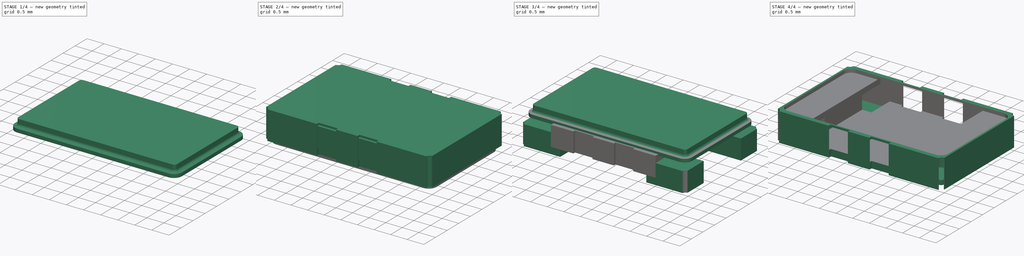
[diagram: build sequence overview — one tinted view per stage of 4, left to right]
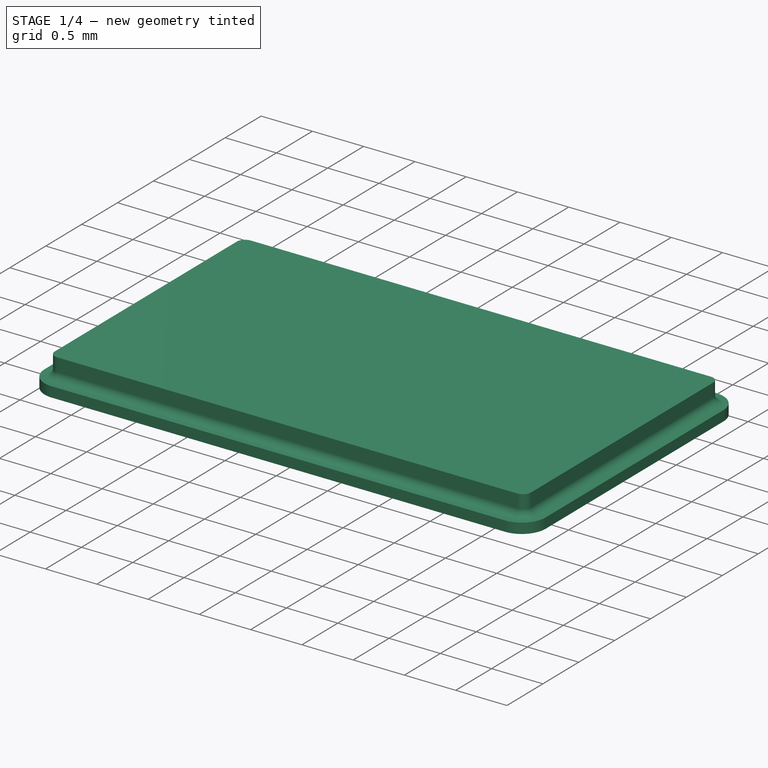
[diagram: stage 1 of 4 — iso view after this stage's code; geometry added in this stage tinted green]
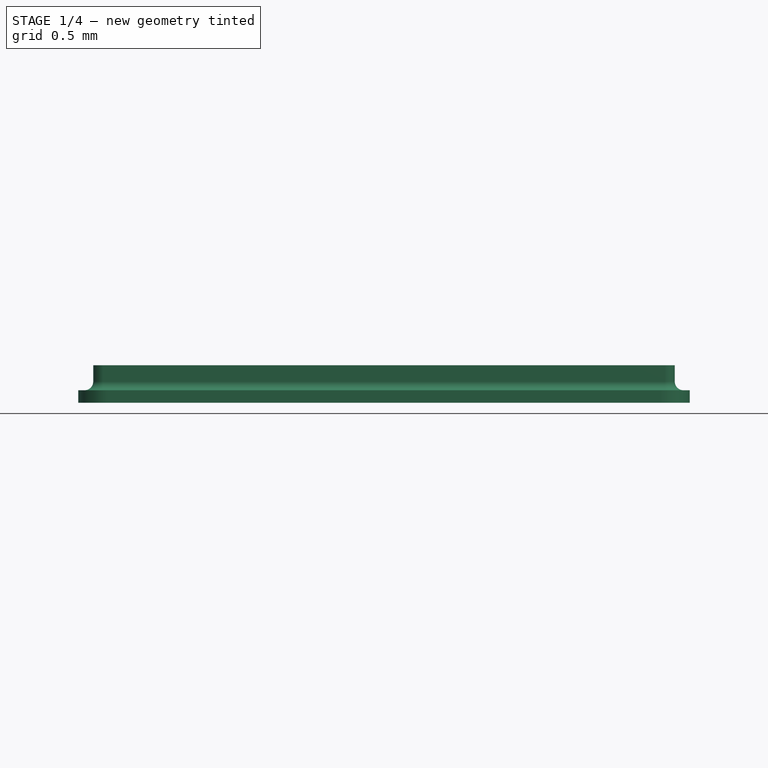
[diagram: stage 1 of 4 — front view after this stage's code; geometry added in this stage tinted green]
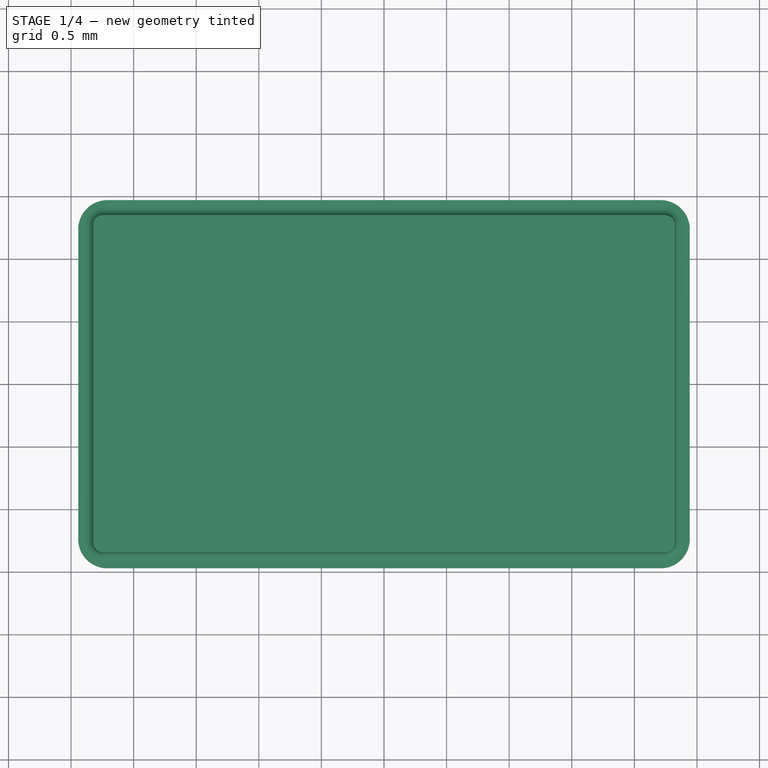
[diagram: stage 1 of 4 — top view after this stage's code; geometry added in this stage tinted green]
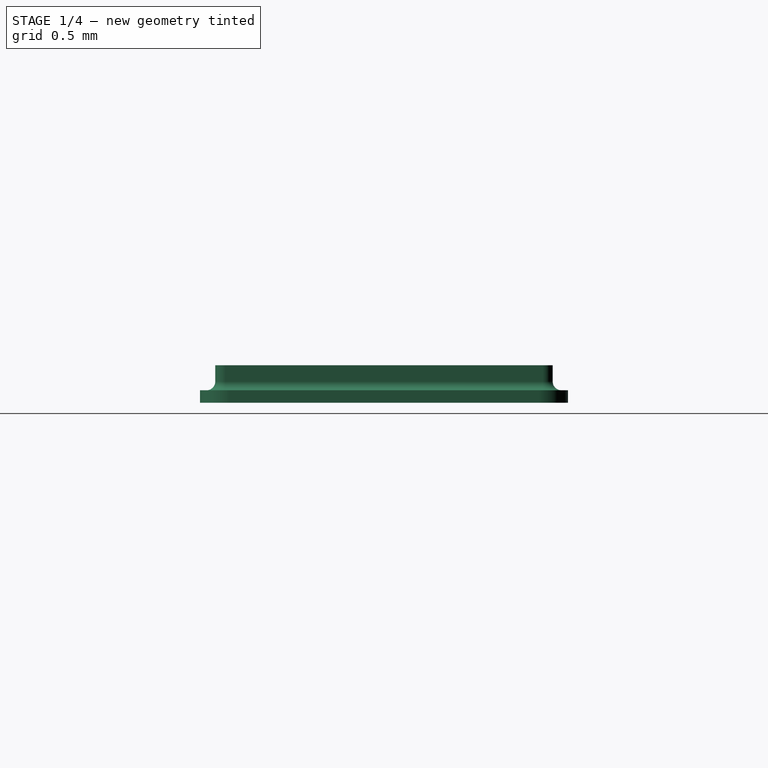
[diagram: stage 1 of 4 — right view after this stage's code; geometry added in this stage tinted green]
FCSTD DOCUMENT  (FreeCAD 0.18R)
Label: Oscillator_SMD_Fox_FT5H_5.0x3.2mm
License: All rights reserved
LicenseURL: http://en.wikipedia.org/wiki/All_rights_reserved
objects: Sketcher::SketchObject×6, PartDesign::Pad×6, PartDesign::Body×6, PartDesign::FeatureBase×2, PartDesign::Fillet×2, PartDesign::Plane×1, Part::MultiCommon×1, Part::MultiFuse×1, Part::Cut×1, App::Part×1, Part::Feature×1
note: 33 computed .brp shape members not serialized (recipe doc carries the construction recipe); baked Part::Feature solids carry a one-line shape summary decoded from their .brp

FEATURE [PartDesign::Pad] Pad006
  Length = 0.1
  Length2 = 100
  Profile = -> Sketch006
  Reversed = true
  Type = 0
FEATURE [PartDesign::Pad] Pad007
  BaseFeature = -> Pad006
  Length = 0.2
  Length2 = 100
  Profile = -> Sketch007
  Type = 0
FEATURE [PartDesign::Fillet] Fillet
  Base = -> Pad007 [Edge23,Edge16,Edge22,Edge21,Edge20,Edge19,Edge18,Edge17]
  BaseFeature = -> Pad007
  Radius = 0.07
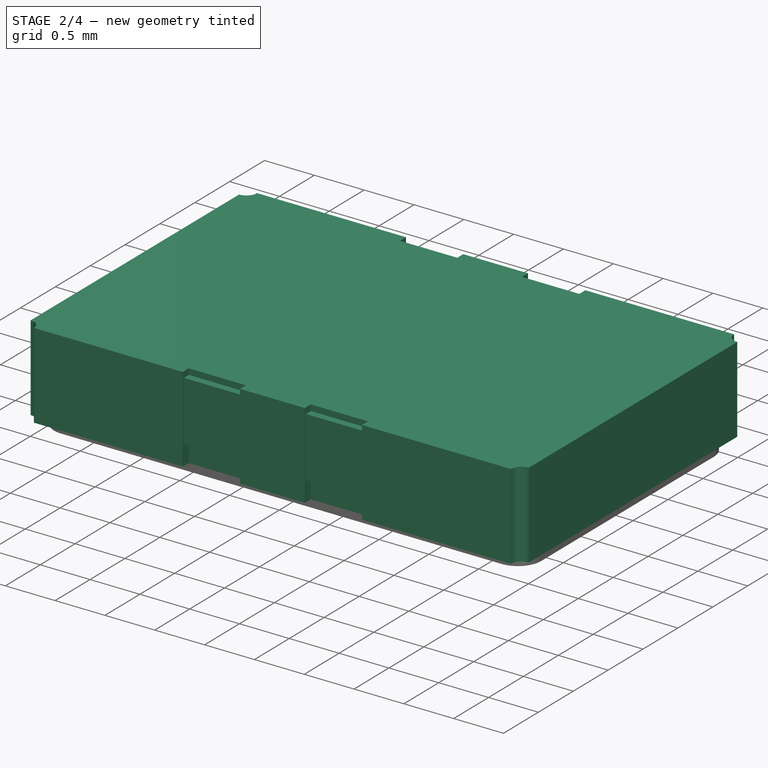
[diagram: stage 2 of 4 — iso view after this stage's code; geometry added in this stage tinted green]
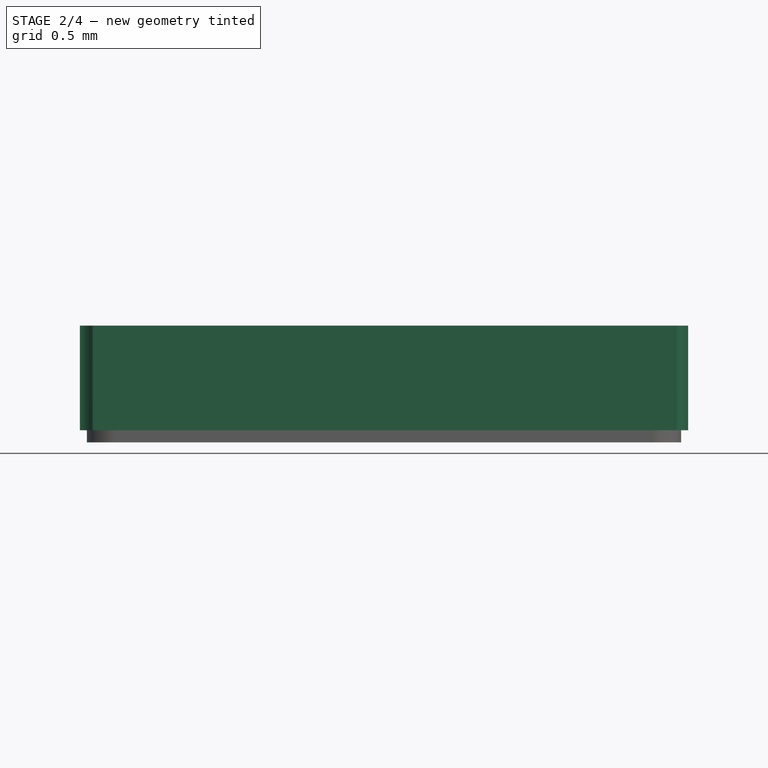
[diagram: stage 2 of 4 — front view after this stage's code; geometry added in this stage tinted green]
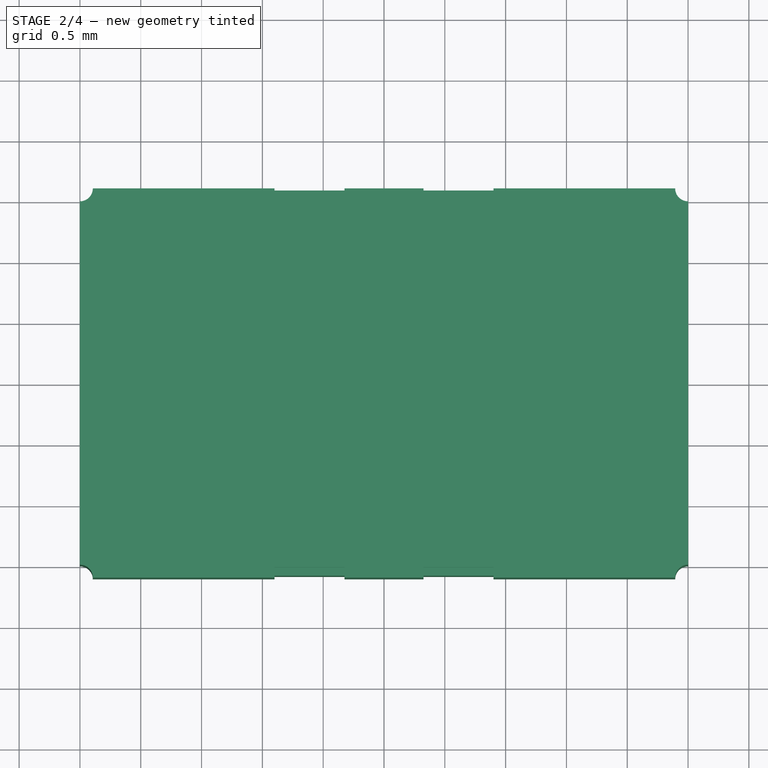
[diagram: stage 2 of 4 — top view after this stage's code; geometry added in this stage tinted green]
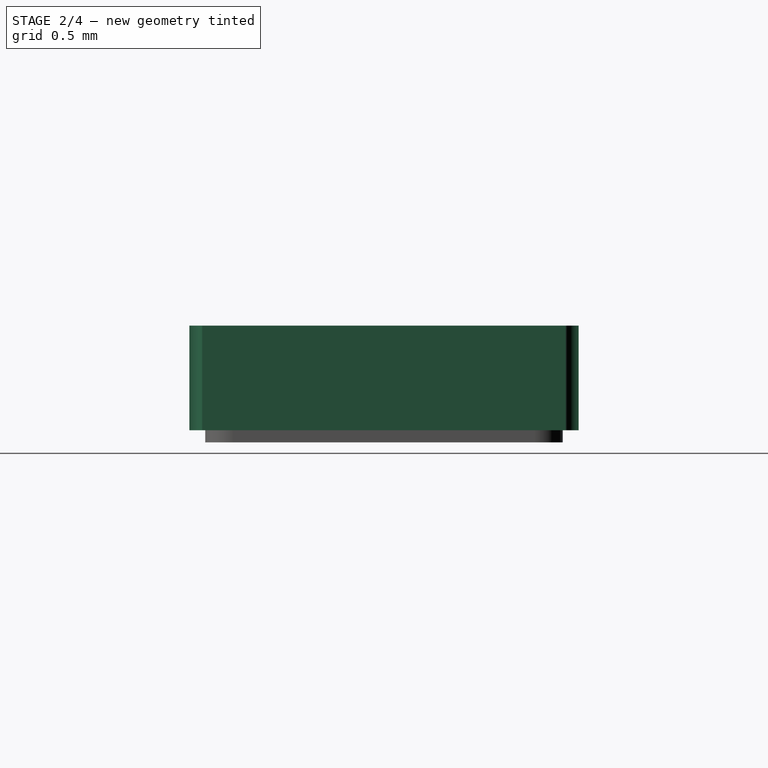
[diagram: stage 2 of 4 — right view after this stage's code; geometry added in this stage tinted green]
FEATURE [Sketcher::SketchObject] Sketch004  label="Pad Footprint"
  MapMode = 5
  Support = -> [XY_Plane006]
  sketch-geometry (17):
    g0: LineSegment StartX=-2.48245 StartY=-1.58381 StartZ=0 EndX=-1.3 EndY=-1.58381 EndZ=0
    g1: LineSegment StartX=-1.3 StartY=-1.58381 StartZ=0 EndX=-1.3 EndY=-1.01213 EndZ=0
    g2: LineSegment StartX=-1.51213 StartY=-0.8 StartZ=0 EndX=-2.48245 EndY=-0.8 EndZ=0
    g3: LineSegment StartX=-2.48245 StartY=-0.8 StartZ=0 EndX=-2.48245 EndY=-1.58381 EndZ=0
    g4: LineSegment StartX=-2.48245 StartY=1.58381 StartZ=0 EndX=-1.3 EndY=1.58381 EndZ=0
    g5: LineSegment StartX=-1.3 StartY=1.58381 StartZ=0 EndX=-1.3 EndY=0.8 EndZ=0
    g6: LineSegment StartX=-1.3 StartY=0.8 StartZ=0 EndX=-2.48245 EndY=0.8 EndZ=0
    g7: LineSegment StartX=-2.48245 StartY=0.8 StartZ=0 EndX=-2.48245 EndY=1.58381 EndZ=0
    g8: LineSegment StartX=2.48245 StartY=1.58381 StartZ=0 EndX=1.3 EndY=1.58381 EndZ=0
    g9: LineSegment StartX=1.3 StartY=1.58381 StartZ=0 EndX=1.3 EndY=0.8 EndZ=0
    g10: LineSegment StartX=1.3 StartY=0.8 StartZ=0 EndX=2.48245 EndY=0.8 EndZ=0
    g11: LineSegment StartX=2.48245 StartY=0.8 StartZ=0 EndX=2.48245 EndY=1.58381 EndZ=0
    g12: LineSegment StartX=1.3 StartY=-0.8 StartZ=0 EndX=2.48245 EndY=-0.8 EndZ=0
    g13: LineSegment StartX=2.48245 StartY=-0.8 StartZ=0 EndX=2.48245 EndY=-1.58381 EndZ=0
    g14: LineSegment StartX=2.48245 StartY=-1.58381 StartZ=0 EndX=1.3 EndY=-1.58381 EndZ=0
    g15: LineSegment StartX=1.3 StartY=-1.58381 StartZ=0 EndX=1.3 EndY=-0.8 EndZ=0
    g16: LineSegment StartX=-1.51213 StartY=-0.8 StartZ=0 EndX=-1.3 EndY=-1.01213 EndZ=0
  constraints (44):
    c: Coincident(g0,g1)
    c: Coincident(g2,g3)
    c: Coincident(g3,g0)
    c: Horizontal(g0)
    c: Horizontal(g2)
    c: Vertical(g1)
    c: Vertical(g3)
    c: Coincident(g4,g5)
    c: Coincident(g5,g6)
    c: Coincident(g6,g7)
    c: Coincident(g7,g4)
    c: Horizontal(g4)
    c: Horizontal(g6)
    c: Vertical(g7)
    c: Coincident(g8,g9)
    c: Coincident(g9,g10)
    c: Coincident(g10,g11)
    c: Coincident(g11,g8)
    c: Horizontal(g8)
    c: Vertical(g9)
    c: Vertical(g11)
    c: Coincident(g12,g13)
    c: Coincident(g13,g14)
    c: Coincident(g14,g15)
    c: Coincident(g15,g12)
    c: Horizontal(g14)
    c: Vertical(g13)
    c: Coincident(g2,g16)
    c: Coincident(g16,g1)
    c: Angle(g2,g16) = 2.35619
    c: Equal(g3,g7)
    c: Equal(g7,g11)
    c: Equal(g11,g13)
    c: Equal(g14,g8)
    c: Equal(g8,g4)
    c: Equal(g4,g0)
    c: Tangent(g6,g10)
    c: Tangent(g1,g5)
    c: Tangent(g2,g12)
    c: DistanceY(g12,g10) = 1.6
    c: DistanceX(g4,g8) = 2.6
    c: Tangent(g9,g15)
    c: Distance(g2,g1) = 0.3
    c: Symmetric(g0,g8,g-1)
FEATURE [PartDesign::Plane] DatumPlane
  AttachmentOffset = pos=(0,0,0.2) rot=(0,0,1;0rad)
  Length = 24
  MapMode = 5
  Placement = pos=(0,0,0.2) rot=(0,0,1;0rad)
  ResizeMode = 0
  Support = -> [XY_Plane006]
  Width = 24
FEATURE [Sketcher::SketchObject] Sketch005
  MapMode = 5
  Placement = pos=(0,0,0.2) rot=(0,0,1;0rad)
  Support = -> [DatumPlane]
  sketch-geometry (4):
    g0: LineSegment StartX=-1.57854 StartY=-1.58394 StartZ=0 EndX=1.57854 EndY=-1.58394 EndZ=0
    g1: LineSegment StartX=1.57854 StartY=-1.58394 StartZ=0 EndX=1.57854 EndY=1.58394 EndZ=0
    g2: LineSegment StartX=1.57854 StartY=1.58394 StartZ=0 EndX=-1.57854 EndY=1.58394 EndZ=0
    g3: LineSegment StartX=-1.57854 StartY=1.58394 StartZ=0 EndX=-1.57854 EndY=-1.58394 EndZ=0
  constraints (9):
    c: Coincident(g0,g1)
    c: Coincident(g1,g2)
    c: Coincident(g2,g3)
    c: Coincident(g3,g0)
    c: Horizontal(g0)
    c: Horizontal(g2)
    c: Vertical(g1)
    c: Vertical(g3)
    c: Symmetric(g2,g0,g-1)
FEATURE [PartDesign::Pad] Pad004
  Length = 0.6
  Length2 = 100
  Placement = pos=(0,0,0.2) rot=(0,0,1;0rad)
  Profile = -> Sketch005
  Type = 0
FEATURE [PartDesign::Body] Body004  label="Pads"
  Group = -> [Sketch004,Sketch005,Pad004,DatumPlane,Pad005]
  Origin = -> Origin006
  Tip = -> Pad005
FEATURE [Sketcher::SketchObject] Sketch006  label="bottom"
  MapMode = 5
  Support = -> [XY_Plane008]
  sketch-geometry (8):
    g0: LineSegment StartX=-2.21025 StartY=1.46989 StartZ=0 EndX=2.21025 EndY=1.46989 EndZ=0
    g1: LineSegment StartX=2.44299 StartY=1.23716 StartZ=0 EndX=2.44299 EndY=-1.23716 EndZ=0
    g2: LineSegment StartX=2.21025 StartY=-1.46989 StartZ=0 EndX=-2.21025 EndY=-1.46989 EndZ=0
    g3: LineSegment StartX=-2.44299 StartY=-1.23716 StartZ=0 EndX=-2.44299 EndY=1.23716 EndZ=0
    g4: ArcOfCircle CenterX=-2.21025 CenterY=1.23716 CenterZ=0 NormalX=0 NormalY=0 NormalZ=1 AngleXU=0 Radius=0.232737 StartAngle=1.5708 EndAngle=3.14159
    g5: ArcOfCircle CenterX=2.21025 CenterY=1.23716 CenterZ=0 NormalX=0 NormalY=0 NormalZ=1 AngleXU=0 Radius=0.232737 StartAngle=0 EndAngle=1.5708
    g6: ArcOfCircle CenterX=2.21025 CenterY=-1.23716 CenterZ=0 NormalX=0 NormalY=0 NormalZ=1 AngleXU=0 Radius=0.232737 StartAngle=4.71239 EndAngle=6.28319
    g7: ArcOfCircle CenterX=-2.21025 CenterY=-1.23716 CenterZ=0 NormalX=0 NormalY=0 NormalZ=1 AngleXU=0 Radius=0.232737 StartAngle=3.14159 EndAngle=4.71239
  constraints (16):
    c: Horizontal(g0)
    c: Horizontal(g2)
    c: Vertical(g1)
    c: Vertical(g3)
    c: Tangent(g0,g4) = 1.5708
    c: Tangent(g3,g4) = 1.5708
    c: Tangent(g0,g5) = 1.5708
    c: Tangent(g1,g5) = 1.5708
    c: Tangent(g1,g6) = 1.5708
    c: Tangent(g2,g6) = 1.5708
    c: Tangent(g2,g7) = 1.5708
    c: Tangent(g3,g7) = 1.5708
    c: Equal(g7,g4)
    c: Equal(g4,g5)
    c: Equal(g5,g6)
    c: Symmetric(g4,g6,g-1)
FEATURE [Sketcher::SketchObject] Sketch007  label="top"
  MapMode = 5
  Support = -> [XY_Plane008]
  sketch-geometry (8):
    g0: LineSegment StartX=-2.24249 StartY=1.3481 StartZ=0 EndX=2.24249 EndY=1.3481 EndZ=0
    g1: LineSegment StartX=2.32297 StartY=1.26762 StartZ=0 EndX=2.32297 EndY=-1.26762 EndZ=0
    g2: LineSegment StartX=2.24249 StartY=-1.3481 StartZ=0 EndX=-2.24249 EndY=-1.3481 EndZ=0
    g3: LineSegment StartX=-2.32297 StartY=-1.26762 StartZ=0 EndX=-2.32297 EndY=1.26762 EndZ=0
    g4: ArcOfCircle CenterX=-2.24249 CenterY=1.26762 CenterZ=0 NormalX=0 NormalY=0 NormalZ=1 AngleXU=0 Radius=0.080476 StartAngle=1.5708 EndAngle=3.14159
    g5: ArcOfCircle CenterX=2.24249 CenterY=1.26762 CenterZ=0 NormalX=0 NormalY=0 NormalZ=1 AngleXU=0 Radius=0.080476 StartAngle=-9e-16 EndAngle=1.5708
    g6: ArcOfCircle CenterX=2.24249 CenterY=-1.26762 CenterZ=0 NormalX=0 NormalY=0 NormalZ=1 AngleXU=0 Radius=0.080476 StartAngle=4.71239 EndAngle=6.28319
    g7: ArcOfCircle CenterX=-2.24249 CenterY=-1.26762 CenterZ=0 NormalX=0 NormalY=0 NormalZ=1 AngleXU=0 Radius=0.080476 StartAngle=3.14159 EndAngle=4.71239
  constraints (16):
    c: Horizontal(g0)
    c: Horizontal(g2)
    c: Vertical(g1)
    c: Vertical(g3)
    c: Tangent(g0,g4) = 1.5708
    c: Tangent(g3,g4) = 1.5708
    c: Tangent(g0,g5) = 1.5708
    c: Tangent(g1,g5) = 1.5708
    c: Tangent(g1,g6) = 1.5708
    c: Tangent(g2,g6) = 1.5708
    c: Tangent(g2,g7) = 1.5708
    c: Tangent(g3,g7) = 1.5708
    c: Equal(g7,g4)
    c: Equal(g4,g5)
    c: Equal(g5,g6)
    c: Symmetric(g4,g6,g-1)
FEATURE [Sketcher::SketchObject] Sketch
  MapMode = 5
  Support = -> [XY_Plane]
  sketch-geometry (28):
    g0: LineSegment [constr] StartX=-2.5 StartY=1.6 StartZ=0 EndX=2.5 EndY=1.6 EndZ=0
    g1: LineSegment [constr] StartX=2.5 StartY=1.6 StartZ=0 EndX=2.5 EndY=-1.6 EndZ=0
    g2: LineSegment [constr] StartX=2.5 StartY=-1.6 StartZ=0 EndX=-2.5 EndY=-1.6 EndZ=0
    g3: LineSegment [constr] StartX=-2.5 StartY=-1.6 StartZ=0 EndX=-2.5 EndY=1.6 EndZ=0
    g4: ArcOfCircle CenterX=-2.5 CenterY=1.6 CenterZ=0 NormalX=0 NormalY=0 NormalZ=1 AngleXU=0 Radius=0.106066 StartAngle=4.71239 EndAngle=6.28319
    g5: ArcOfCircle CenterX=2.5 CenterY=1.6 CenterZ=0 NormalX=0 NormalY=0 NormalZ=1 AngleXU=0 Radius=0.106066 StartAngle=3.14159 EndAngle=4.71239
    g6: ArcOfCircle CenterX=2.5 CenterY=-1.6 CenterZ=0 NormalX=0 NormalY=0 NormalZ=1 AngleXU=0 Radius=0.106066 StartAngle=1.5708 EndAngle=3.14159
    g7: ArcOfCircle CenterX=-2.5 CenterY=-1.6 CenterZ=0 NormalX=0 NormalY=0 NormalZ=1 AngleXU=0 Radius=0.106066 StartAngle=0 EndAngle=1.5708
    g8: LineSegment StartX=-2.39393 StartY=1.6 StartZ=0 EndX=-0.9 EndY=1.6 EndZ=0
    g9: LineSegment StartX=2.5 StartY=1.49393 StartZ=0 EndX=2.5 EndY=-1.49393 EndZ=0
    g10: LineSegment StartX=-2.39393 StartY=-1.6 StartZ=0 EndX=-0.9 EndY=-1.6 EndZ=0
    g11: LineSegment StartX=-2.5 StartY=-1.49393 StartZ=0 EndX=-2.5 EndY=1.49393 EndZ=0
    g12: LineSegment StartX=-0.325 StartY=1.6 StartZ=0 EndX=-0.325 EndY=1.51409 EndZ=0
    g13: LineSegment StartX=-0.325 StartY=1.51409 StartZ=0 EndX=-0.9 EndY=1.51409 EndZ=0
    g14: LineSegment StartX=-0.9 StartY=1.51409 StartZ=0 EndX=-0.9 EndY=1.6 EndZ=0
    g15: LineSegment StartX=0.9 StartY=1.6 StartZ=0 EndX=0.9 EndY=1.51409 EndZ=0
    g16: LineSegment StartX=0.9 StartY=1.51409 StartZ=0 EndX=0.325 EndY=1.51409 EndZ=0
    g17: LineSegment StartX=0.325 StartY=1.51409 StartZ=0 EndX=0.325 EndY=1.6 EndZ=0
    g18: LineSegment StartX=-0.9 StartY=-1.51409 StartZ=0 EndX=-0.325 EndY=-1.51409 EndZ=0
    g19: LineSegment StartX=-0.325 StartY=-1.51409 StartZ=0 EndX=-0.325 EndY=-1.6 EndZ=0
    g20: LineSegment StartX=-0.9 StartY=-1.6 StartZ=0 EndX=-0.9 EndY=-1.51409 EndZ=0
    g21: LineSegment StartX=0.325 StartY=-1.51409 StartZ=0 EndX=0.9 EndY=-1.51409 EndZ=0
    g22: LineSegment StartX=0.9 StartY=-1.51409 StartZ=0 EndX=0.9 EndY=-1.6 EndZ=0
    g23: LineSegment StartX=0.325 StartY=-1.6 StartZ=0 EndX=0.325 EndY=-1.51409 EndZ=0
    g24: LineSegment StartX=-0.325 StartY=1.6 StartZ=0 EndX=0.325 EndY=1.6 EndZ=0
    g25: LineSegment StartX=0.9 StartY=1.6 StartZ=0 EndX=2.39393 EndY=1.6 EndZ=0
    g26: LineSegment StartX=0.9 StartY=-1.6 StartZ=0 EndX=2.39393 EndY=-1.6 EndZ=0
    g27: LineSegment StartX=-0.325 StartY=-1.6 StartZ=0 EndX=0.325 EndY=-1.6 EndZ=0
  constraints (86):
    c: Coincident(g0,g1)
    c: Coincident(g1,g2)
    c: Coincident(g2,g3)
    c: Coincident(g3,g0)
    c: Horizontal(g0)
    c: Horizontal(g2)
    c: Vertical(g1)
    c: Vertical(g3)
    c: Symmetric(g0,g1,g-1)
    c: Coincident(g4,g0)
    c: Coincident(g5,g0)
    c: Coincident(g6,g1)
    c: Coincident(g7,g2)
    c: PointOnObject(g4,g3)
    c: PointOnObject(g4,g0)
    c: PointOnObject(g5,g0)
    c: PointOnObject(g5,g1)
    c: PointOnObject(g6,g1)
    c: PointOnObject(g6,g2)
    c: PointOnObject(g7,g2)
    c: PointOnObject(g7,g3)
    c: Coincident(g8,g4)
    c: Coincident(g25,g5)
    c: Coincident(g9,g6)
    c: Coincident(g10,g7)
    c: Coincident(g26,g6)
    c: Coincident(g11,g7)
    c: Coincident(g11,g4)
    c: Equal(g4,g7)
    c: Equal(g7,g5)
    c: Equal(g5,g6)
    c: DistanceY(g7,g4) = 3.2
    c: Coincident(g5,g9)
    c: DistanceX(g4,g5) = 5
    c: Coincident(g12,g13)
    c: Coincident(g13,g14)
    c: Horizontal(g13)
    c: Vertical(g12)
    c: Vertical(g14)
    c: Coincident(g15,g16)
    c: Coincident(g16,g17)
    c: Horizontal(g16)
    c: Vertical(g15)
    c: Vertical(g17)
    c: Coincident(g18,g19)
    c: Coincident(g20,g18)
    c: Horizontal(g18)
    c: Vertical(g19)
    c: Vertical(g20)
    c: Coincident(g21,g22)
    c: Coincident(g23,g21)
    c: Horizontal(g21)
    c: Vertical(g22)
    c: Vertical(g23)
    c: PointOnObject(g14,g0)
    c: PointOnObject(g12,g0)
    c: PointOnObject(g17,g0)
    c: PointOnObject(g15,g0)
    c: PointOnObject(g22,g2)
    c: PointOnObject(g23,g2)
    c: PointOnObject(g19,g2)
    c: PointOnObject(g20,g2)
    c: PointOnObject(g8,g14)
    c: PointOnObject(g24,g12)
    c: Tangent(g8,g24)
    c: PointOnObject(g24,g17)
    c: PointOnObject(g25,g15)
    c: Tangent(g24,g25)
    c: PointOnObject(g27,g23)
    c: PointOnObject(g26,g22)
    c: Tangent(g10,g26)
    c: PointOnObject(g10,g20)
    c: PointOnObject(g27,g19)
    c: Tangent(g10,g27)
    c: Equal(g13,g16)
    c: Equal(g16,g18)
    c: Equal(g18,g21)
    c: Equal(g12,g17)
    c: Equal(g17,g19)
    c: Equal(g19,g23)
    c: Equal(g10,g8)
    c: Equal(g8,g25)
    c: Equal(g25,g26)
    c: DistanceX(g4,g8) = 1.6
    c: DistanceX(g12,g17) = 0.65
    c: Distance(g4,g4) = 0.15
FEATURE [PartDesign::Pad] Pad
  Length = 0.86
  Length2 = 100
  Profile = -> Sketch
  Type = 0
FEATURE [PartDesign::Body] Body  label="Epoxy Envelope"
  Group = -> [Sketch,Pad]
  Origin = -> Origin
  Tip = -> Pad
FEATURE [PartDesign::FeatureBase] Clone
  BaseFeature = -> Body
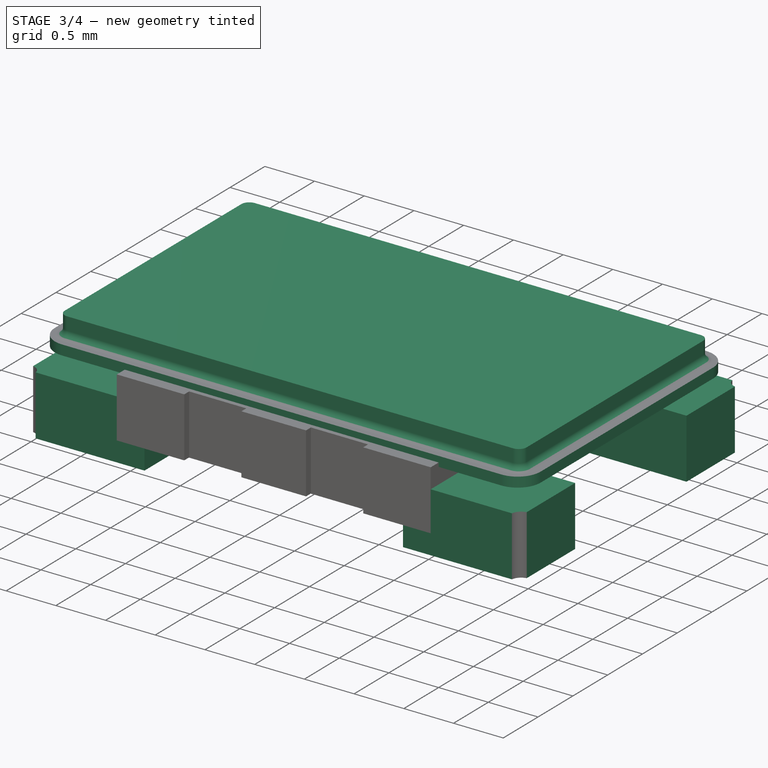
[diagram: stage 3 of 4 — iso view after this stage's code; geometry added in this stage tinted green]
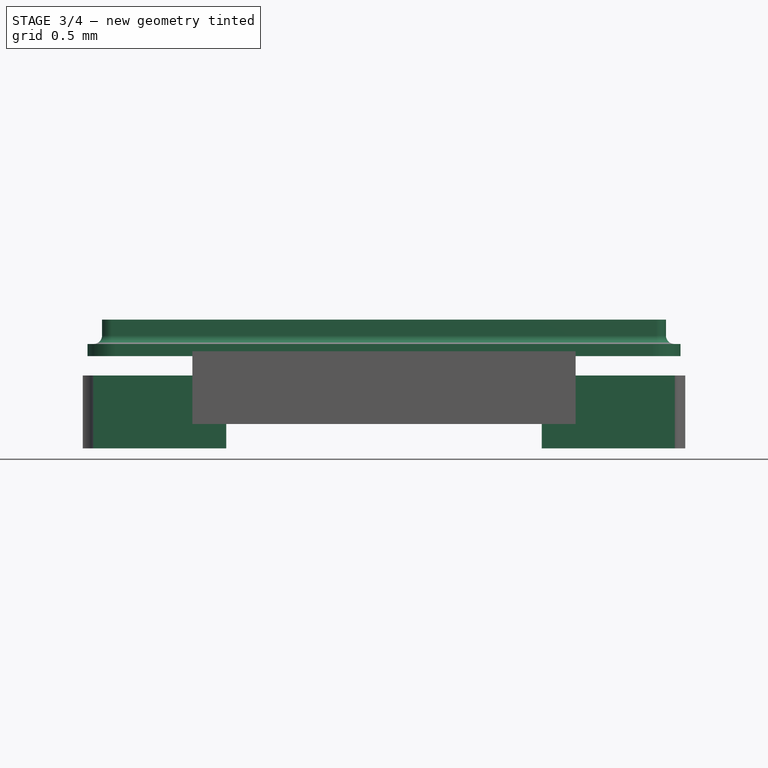
[diagram: stage 3 of 4 — front view after this stage's code; geometry added in this stage tinted green]
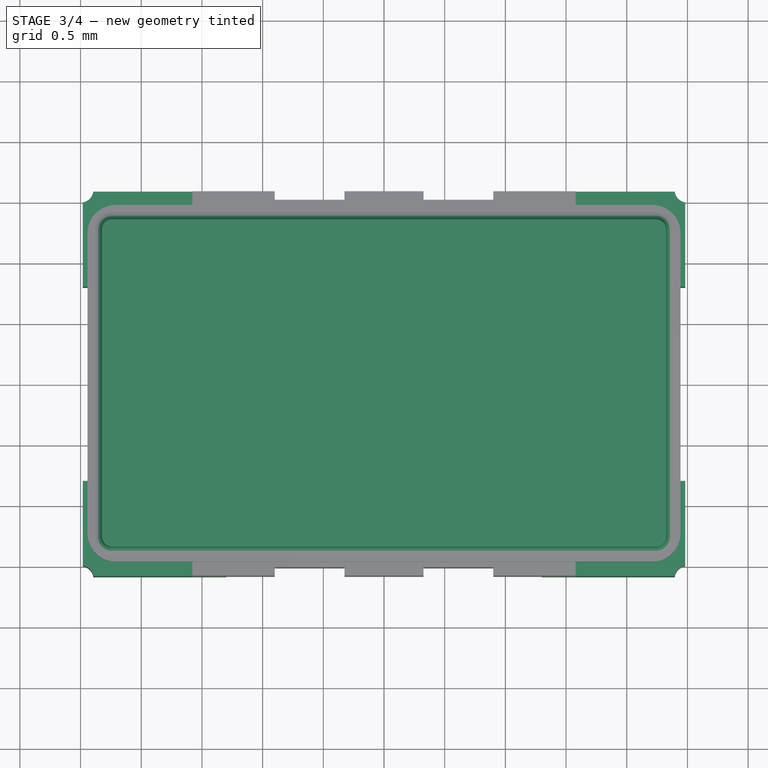
[diagram: stage 3 of 4 — top view after this stage's code; geometry added in this stage tinted green]
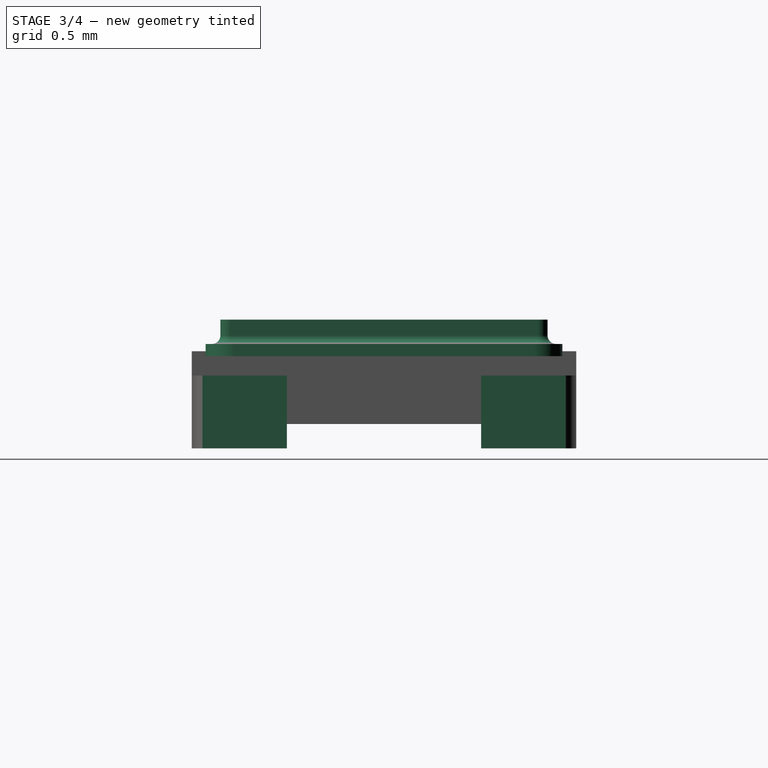
[diagram: stage 3 of 4 — right view after this stage's code; geometry added in this stage tinted green]
FEATURE [PartDesign::Pad] Pad005
  BaseFeature = -> Pad004
  Length = 0.6
  Length2 = 100
  Placement = pos=(0,0,0.2) rot=(0,0,1;0rad)
  Profile = -> Sketch004
  Type = 0
FEATURE [PartDesign::Body] Body005  label="Epoxy Envelope Clone"
  BaseFeature = -> Body
  Group = -> [Clone]
  Origin = -> Origin007
  Tip = -> Clone
FEATURE [Part::MultiCommon] Common  label="Pads (trimmed)"
  Shapes = -> [Body004,Body005]
FEATURE [PartDesign::Body] Body007  label="Cap"
  Group = -> [CopySketch007,Pad008,Fillet001]
  Origin = -> Origin009
  Placement = pos=(0,0,1.06) rot=(0,0,1;0rad)
  Tip = -> Fillet001
FEATURE [Part::MultiFuse] Fusion  label="Gold Bits"
  Shapes = -> [Common,Body006]
FEATURE [PartDesign::FeatureBase] Clone001
  BaseFeature = -> Fusion
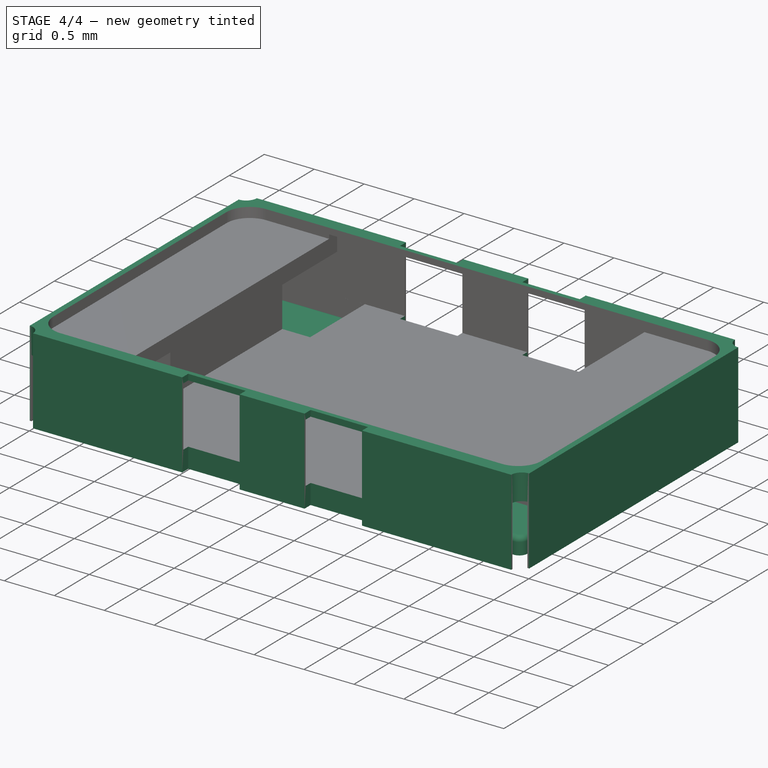
[diagram: stage 4 of 4 — iso view after this stage's code; geometry added in this stage tinted green]
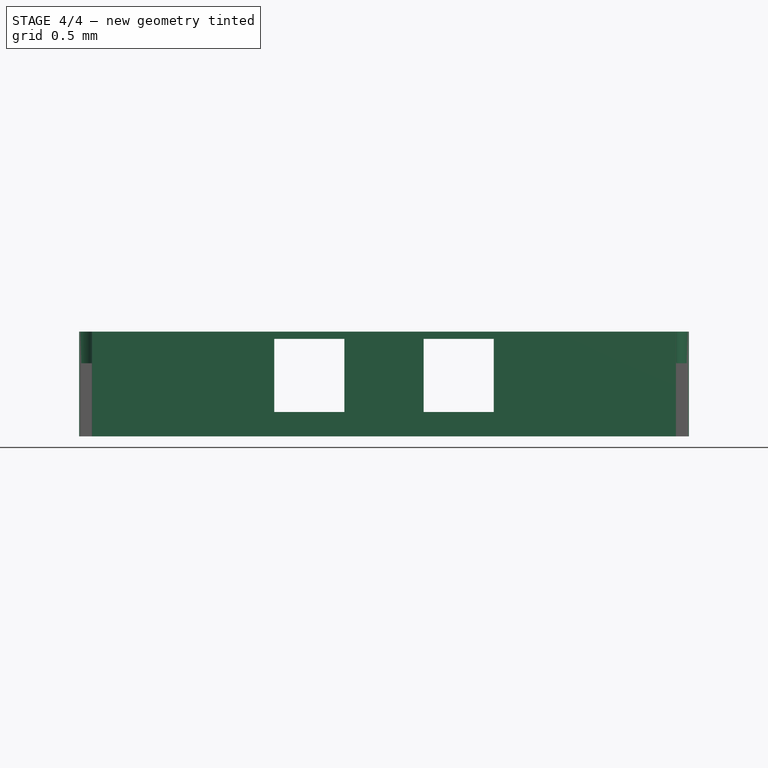
[diagram: stage 4 of 4 — front view after this stage's code; geometry added in this stage tinted green]
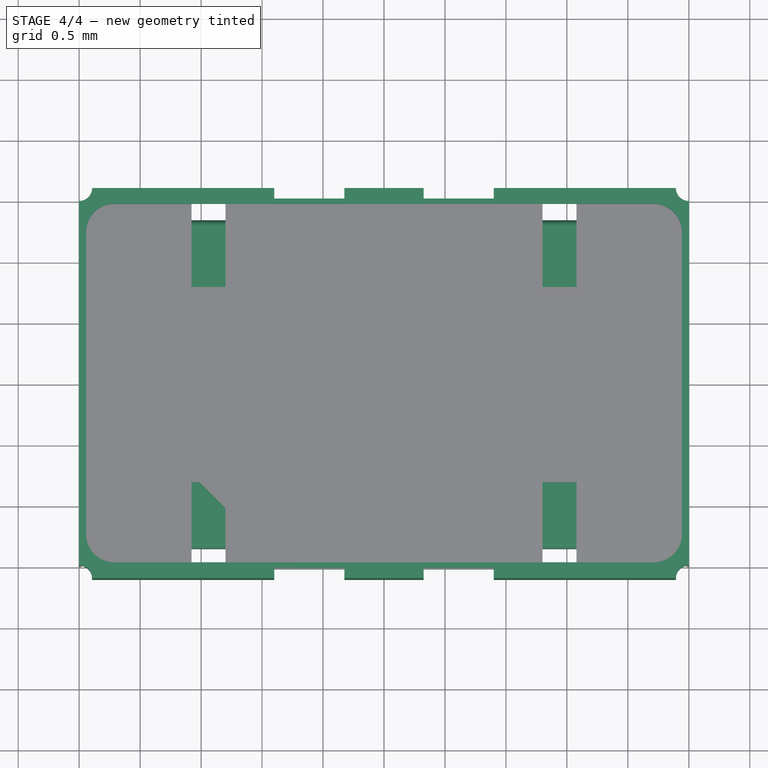
[diagram: stage 4 of 4 — top view after this stage's code; geometry added in this stage tinted green]
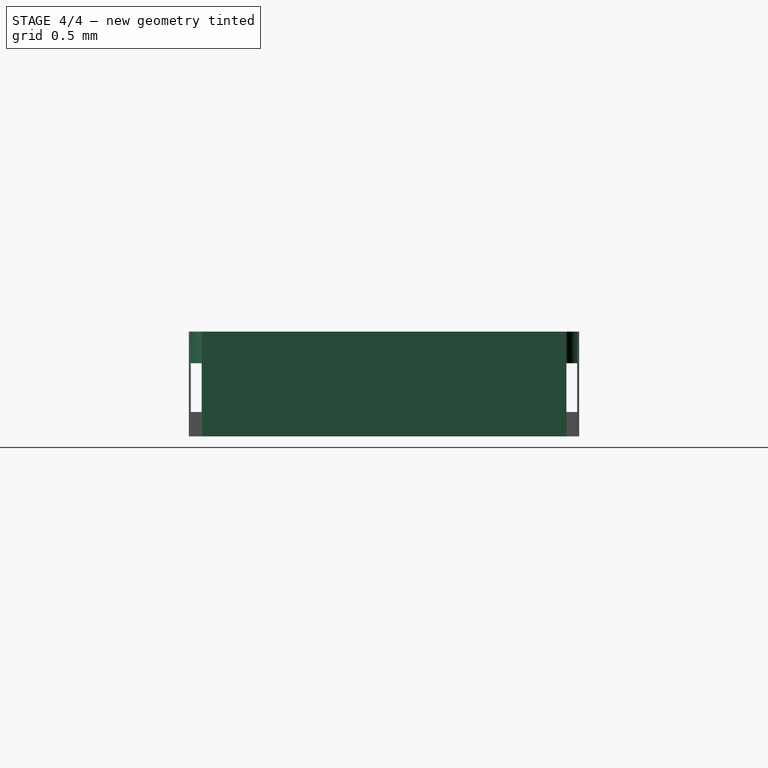
[diagram: stage 4 of 4 — right view after this stage's code; geometry added in this stage tinted green]
FEATURE [PartDesign::Body] Body006  label="Substrate"
  Group = -> [Sketch007,Sketch006,Pad006,Pad007,Fillet]
  Origin = -> Origin008
  Placement = pos=(0,0,0.86) rot=(0,0,1;0rad)
  Tip = -> Fillet
FEATURE [Sketcher::SketchObject] CopySketch007
  sketch-geometry (8):
    g0: LineSegment StartX=-2.24249 StartY=1.3481 StartZ=0 EndX=2.24249 EndY=1.3481 EndZ=0
    g1: LineSegment StartX=2.32297 StartY=1.26762 StartZ=0 EndX=2.32297 EndY=-1.26762 EndZ=0
    g2: LineSegment StartX=2.24249 StartY=-1.3481 StartZ=0 EndX=-2.24249 EndY=-1.3481 EndZ=0
    g3: LineSegment StartX=-2.32297 StartY=-1.26762 StartZ=0 EndX=-2.32297 EndY=1.26762 EndZ=0
    g4: ArcOfCircle CenterX=-2.24249 CenterY=1.26762 CenterZ=0 NormalX=0 NormalY=0 NormalZ=1 AngleXU=0 Radius=0.080476 StartAngle=1.5708 EndAngle=3.14159
    g5: ArcOfCircle CenterX=2.24249 CenterY=1.26762 CenterZ=0 NormalX=0 NormalY=0 NormalZ=1 AngleXU=0 Radius=0.080476 StartAngle=-9e-16 EndAngle=1.5708
    g6: ArcOfCircle CenterX=2.24249 CenterY=-1.26762 CenterZ=0 NormalX=0 NormalY=0 NormalZ=1 AngleXU=0 Radius=0.080476 StartAngle=4.71239 EndAngle=6.28319
    g7: ArcOfCircle CenterX=-2.24249 CenterY=-1.26762 CenterZ=0 NormalX=0 NormalY=0 NormalZ=1 AngleXU=0 Radius=0.080476 StartAngle=3.14159 EndAngle=4.71239
  constraints (16):
    c: Horizontal(g0)
    c: Horizontal(g2)
    c: Vertical(g1)
    c: Vertical(g3)
    c: Tangent(g0,g4) = 1.5708
    c: Tangent(g3,g4) = 1.5708
    c: Tangent(g0,g5) = 1.5708
    c: Tangent(g1,g5) = 1.5708
    c: Tangent(g1,g6) = 1.5708
    c: Tangent(g2,g6) = 1.5708
    c: Tangent(g2,g7) = 1.5708
    c: Tangent(g3,g7) = 1.5708
    c: Equal(g7,g4)
    c: Equal(g4,g5)
    c: Equal(g5,g6)
    c: Symmetric(g4,g6,g-1)
FEATURE [PartDesign::Pad] Pad008
  Length = 0.17
  Length2 = 100
  Profile = -> CopySketch007
  Type = 0
FEATURE [PartDesign::Fillet] Fillet001
  Base = -> Pad008 [Face10]
  BaseFeature = -> Pad008
  Radius = 0.05
FEATURE [PartDesign::Body] Body008  label="Gold Bits Clone"
  BaseFeature = -> Fusion
  Group = -> [Clone001]
  Origin = -> Origin010
  Tip = -> Clone001
FEATURE [Part::Cut] Cut  label="Epoxy"
  Base = -> Body
  Tool = -> Body008
FEATURE [App::Part] Part
  Group = -> [Body007,Body004,Cut,Common,Body008,Body006,Body005,Body,Fusion]
  Origin = -> Origin011
FEATURE [Part::Feature] Shape001  label="Oscillator_SMD_Fox_FT5H_5.0x3.2mm"
  shape: bbox 3.2 x 5 x 1.23 mm, 170 faces, 3 solids (baked)
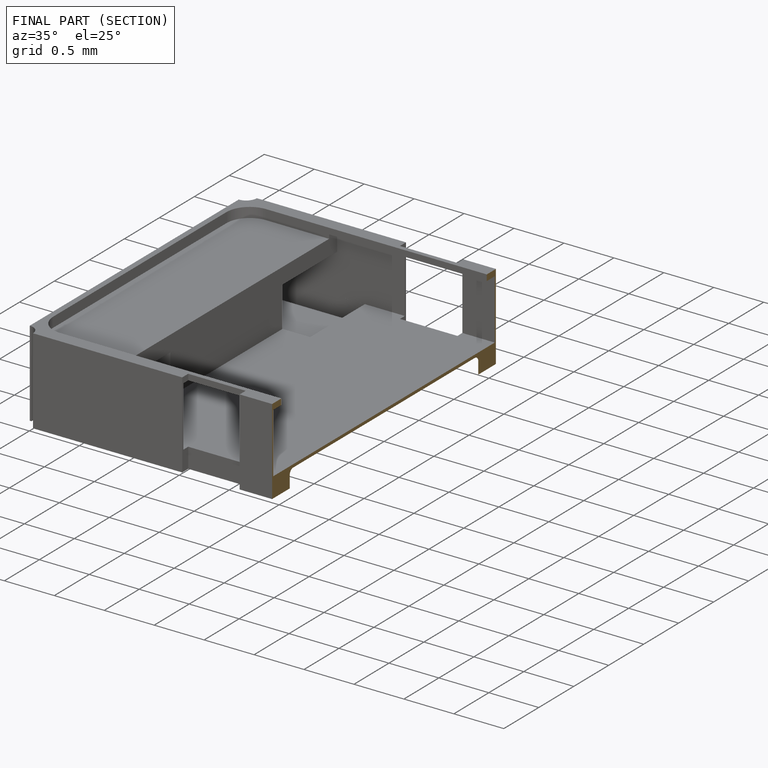
[diagram: finished part — half-section view (interior)]
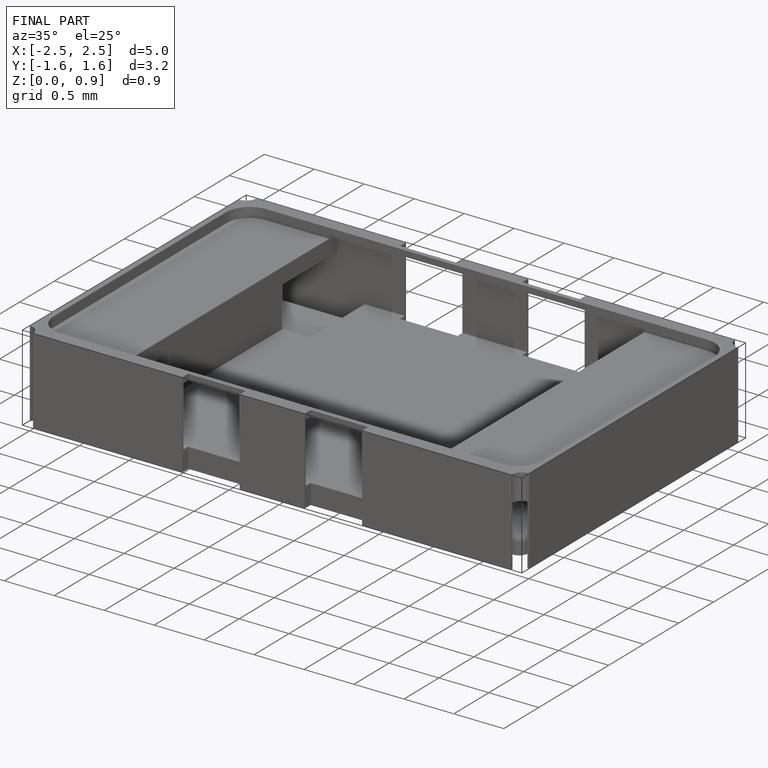
[diagram: finished part — iso view with bounding-box wireframe]
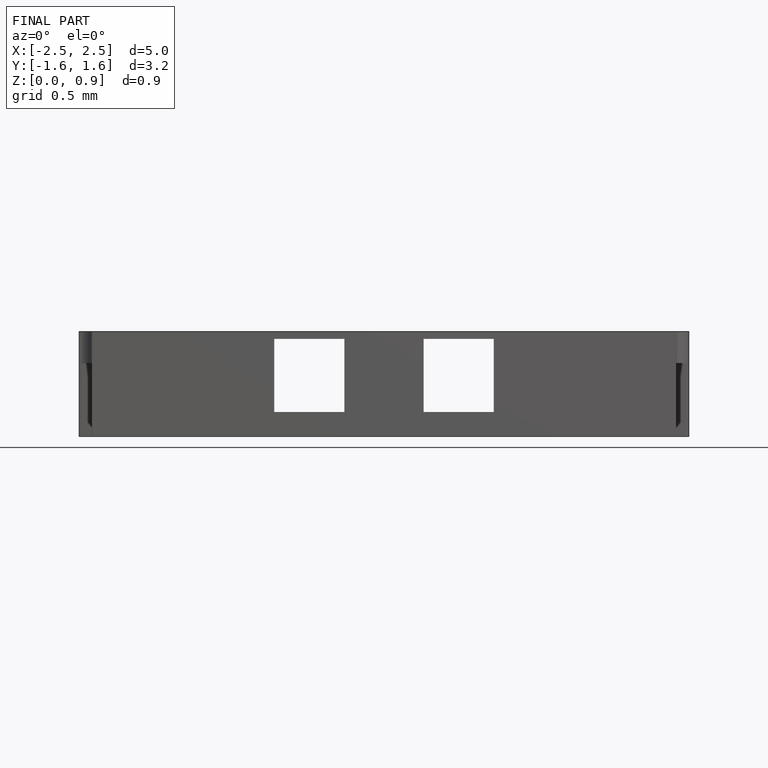
[diagram: finished part — front view with bounding-box wireframe]
